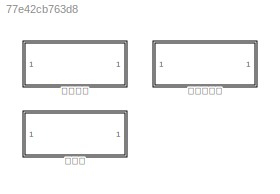
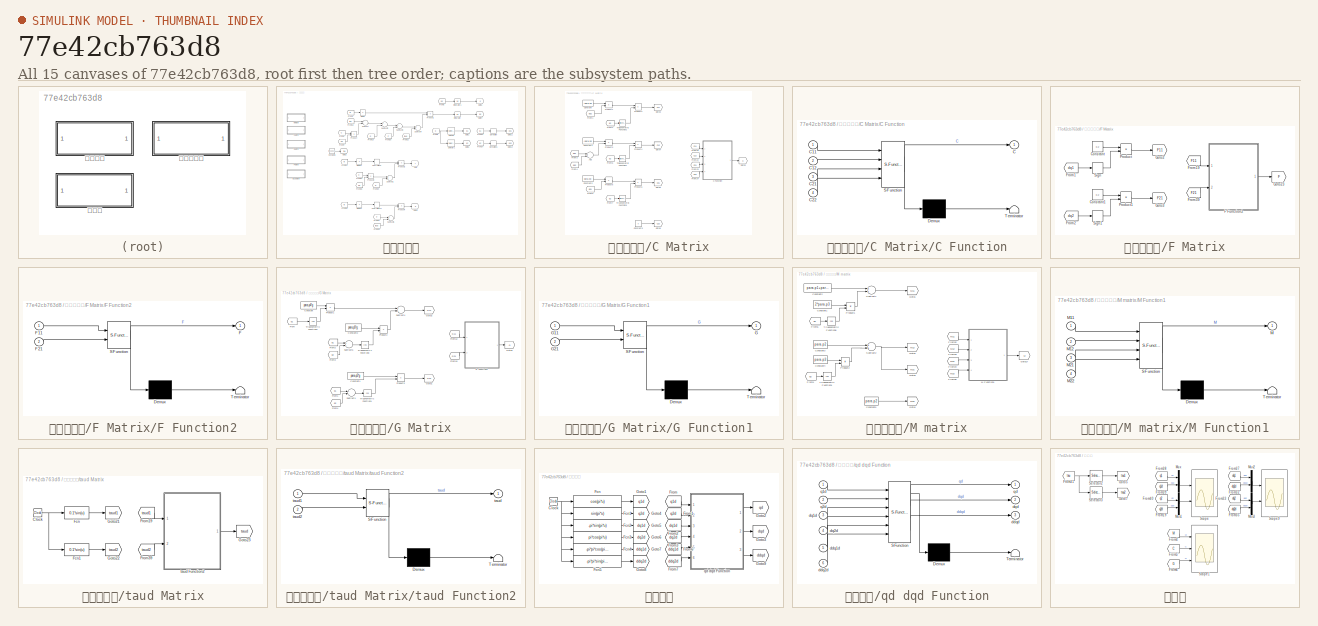
[diagram: thumbnail index - all 15 canvases of the model, root first then tree order]
MODEL slx_77e42cb763d8
KIND model
CONFIG AbsTol = auto
CONFIG EnableMultiTasking = on
CONFIG FixedStep = 0.005
CONFIG MaxStep = auto
CONFIG MinStep = auto
CONFIG RelTol = 1e-3
CONFIG SampleTimeConstraint = Unconstrained
CONFIG Solver = ode4
CONFIG SolverName = ode4
CONFIG StartTime = 0.0
CONFIG StopTime = tmax
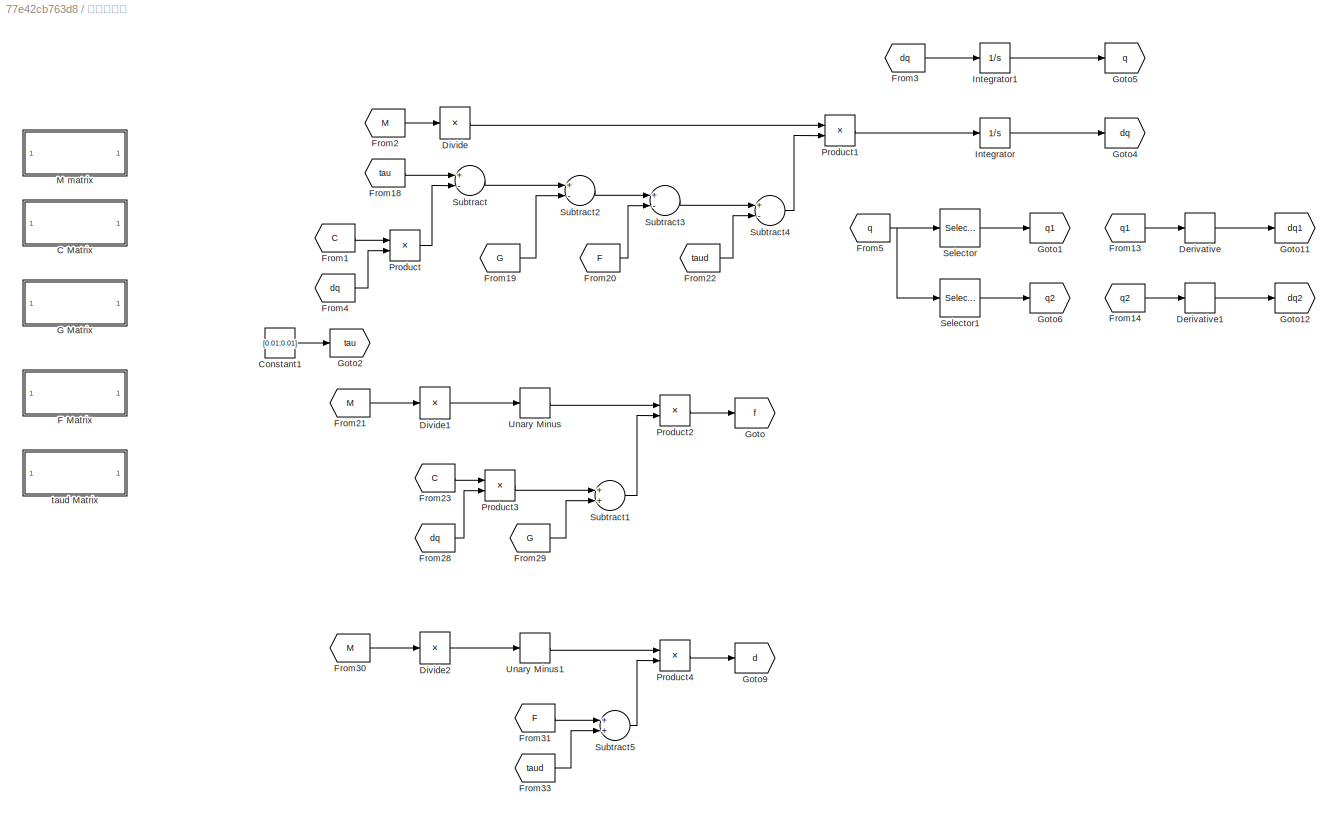
BLOCK [SubSystem] 动力学方程
  Ports = []
  RequestExecContextInheritance = off
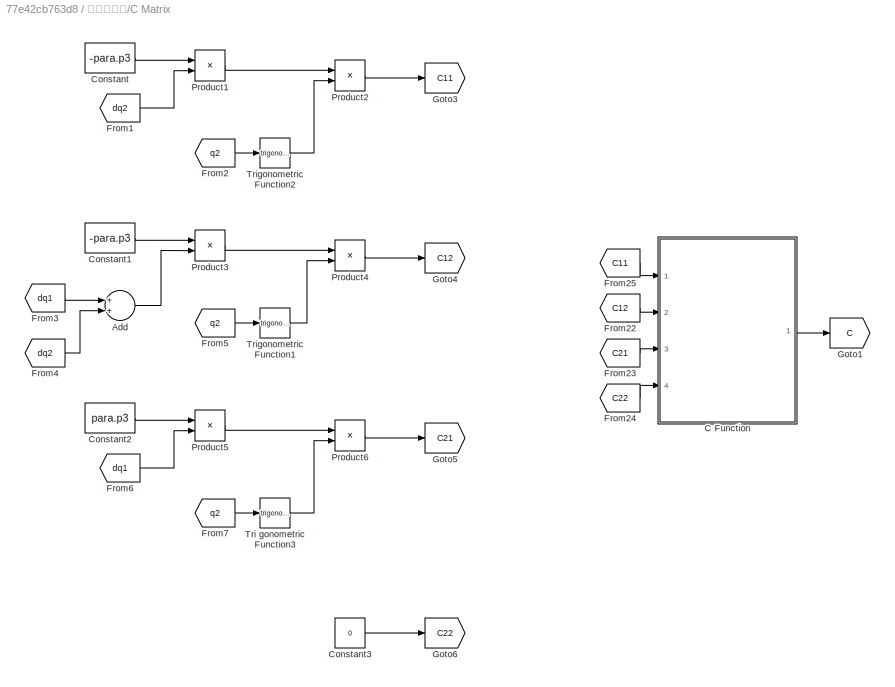
BLOCK [SubSystem] 动力学方程/C Matrix
  Ports = []
  RequestExecContextInheritance = off
BLOCK [Sum] 动力学方程/C Matrix/Add
  InputSameDT = off
  OutDataTypeStr = Inherit: Inherit via internal rule
  Ports = [2, 1]
  SaturateOnIntegerOverflow = off
BLOCK [SubSystem] 动力学方程/C Matrix/C Function
  ErrorFcn = Stateflow.Translate.translate
  PermitHierarchicalResolution = ExplicitOnly
  Ports = [4, 1]
  RequestExecContextInheritance = off
  SFBlockType = MATLAB Function
  TreatAsAtomicUnit = on
BLOCK [Demux] 动力学方程/C Matrix/C Function/ Demux 
  Outputs = 1
  Ports = [1, 1]
BLOCK [S-Function] 动力学方程/C Matrix/C Function/ SFunction 
  EnableBusSupport = on
  FunctionName = sf_sfun
  PortCounts = [4 2]
  Ports = [4, 2]
  SFcnIsStateOwnerBlock = off
  SFunctionDeploymentMode = off
  Tag = Stateflow S-Function common_2 3
BLOCK [Terminator] 动力学方程/C Matrix/C Function/ Terminator 
BLOCK [Outport] 动力学方程/C Matrix/C Function/C
  IconDisplay = Port number
BLOCK [Inport] 动力学方程/C Matrix/C Function/C11
  IconDisplay = Port number
BLOCK [Inport] 动力学方程/C Matrix/C Function/C12
  IconDisplay = Port number
  Port = 2
BLOCK [Inport] 动力学方程/C Matrix/C Function/C21
  IconDisplay = Port number
  Port = 3
BLOCK [Inport] 动力学方程/C Matrix/C Function/C22
  IconDisplay = Port number
  Port = 4
BLOCK [Constant] 动力学方程/C Matrix/Constant
  Value = -para.p3
BLOCK [Constant] 动力学方程/C Matrix/Constant1
  Value = -para.p3
BLOCK [Constant] 动力学方程/C Matrix/Constant2
  Value = para.p3
BLOCK [Constant] 动力学方程/C Matrix/Constant3
  Value = 0
BLOCK [From] 动力学方程/C Matrix/From1
  GotoTag = dq2
  TagVisibility = global
BLOCK [From] 动力学方程/C Matrix/From2
  GotoTag = q2
  TagVisibility = global
BLOCK [From] 动力学方程/C Matrix/From22
  GotoTag = C12
BLOCK [From] 动力学方程/C Matrix/From23
  GotoTag = C21
BLOCK [From] 动力学方程/C Matrix/From24
  GotoTag = C22
BLOCK [From] 动力学方程/C Matrix/From25
  GotoTag = C11
BLOCK [From] 动力学方程/C Matrix/From3
  GotoTag = dq1
  TagVisibility = global
BLOCK [From] 动力学方程/C Matrix/From4
  GotoTag = dq2
  TagVisibility = global
BLOCK [From] 动力学方程/C Matrix/From5
  GotoTag = q2
  TagVisibility = global
BLOCK [From] 动力学方程/C Matrix/From6
  GotoTag = dq1
  TagVisibility = global
BLOCK [From] 动力学方程/C Matrix/From7
  GotoTag = q2
  TagVisibility = global
BLOCK [Goto] 动力学方程/C Matrix/Goto1
  GotoTag = C
  TagVisibility = global
BLOCK [Goto] 动力学方程/C Matrix/Goto3
  GotoTag = C11
BLOCK [Goto] 动力学方程/C Matrix/Goto4
  GotoTag = C12
BLOCK [Goto] 动力学方程/C Matrix/Goto5
  GotoTag = C21
BLOCK [Goto] 动力学方程/C Matrix/Goto6
  GotoTag = C22
BLOCK [Product] 动力学方程/C Matrix/Product1
  InputSameDT = off
  OutDataTypeStr = Inherit: Inherit via internal rule
  Ports = [2, 1]
  RndMeth = Floor
  SaturateOnIntegerOverflow = off
BLOCK [Product] 动力学方程/C Matrix/Product2
  InputSameDT = off
  OutDataTypeStr = Inherit: Inherit via internal rule
  Ports = [2, 1]
  RndMeth = Floor
  SaturateOnIntegerOverflow = off
BLOCK [Product] 动力学方程/C Matrix/Product3
  InputSameDT = off
  OutDataTypeStr = Inherit: Inherit via internal rule
  Ports = [2, 1]
  RndMeth = Floor
  SaturateOnIntegerOverflow = off
BLOCK [Product] 动力学方程/C Matrix/Product4
  InputSameDT = off
  OutDataTypeStr = Inherit: Inherit via internal rule
  Ports = [2, 1]
  RndMeth = Floor
  SaturateOnIntegerOverflow = off
BLOCK [Product] 动力学方程/C Matrix/Product5
  InputSameDT = off
  OutDataTypeStr = Inherit: Inherit via internal rule
  Ports = [2, 1]
  RndMeth = Floor
  SaturateOnIntegerOverflow = off
BLOCK [Product] 动力学方程/C Matrix/Product6
  InputSameDT = off
  OutDataTypeStr = Inherit: Inherit via internal rule
  Ports = [2, 1]
  RndMeth = Floor
  SaturateOnIntegerOverflow = off
BLOCK [Trigonometry] 动力学方程/C Matrix/Tri gonometric Function3
  Ports = [1, 1]
BLOCK [Trigonometry] 动力学方程/C Matrix/Trigonometric Function1
  Ports = [1, 1]
BLOCK [Trigonometry] 动力学方程/C Matrix/Trigonometric Function2
  Ports = [1, 1]
BLOCK [Constant] 动力学方程/Constant1
  Value = [0.01;0.01]
BLOCK [Derivative] 动力学方程/Derivative
BLOCK [Derivative] 动力学方程/Derivative1
BLOCK [Product] 动力学方程/Divide
  InputSameDT = off
  Inputs = /
  Multiplication = Matrix(*)
  OutDataTypeStr = Inherit: Inherit via internal rule
  Ports = [1, 1]
  RndMeth = Floor
  SaturateOnIntegerOverflow = off
BLOCK [Product] 动力学方程/Divide1
  InputSameDT = off
  Inputs = /
  Multiplication = Matrix(*)
  OutDataTypeStr = Inherit: Inherit via internal rule
  Ports = [1, 1]
  RndMeth = Floor
  SaturateOnIntegerOverflow = off
BLOCK [Product] 动力学方程/Divide2
  InputSameDT = off
  Inputs = /
  Multiplication = Matrix(*)
  OutDataTypeStr = Inherit: Inherit via internal rule
  Ports = [1, 1]
  RndMeth = Floor
  SaturateOnIntegerOverflow = off
BLOCK [SubSystem] 动力学方程/F Matrix
  Ports = []
  RequestExecContextInheritance = off
BLOCK [Constant] 动力学方程/F Matrix/Constant
  Value = 0.2
BLOCK [Constant] 动力学方程/F Matrix/Constant1
  Value = 0.2
BLOCK [SubSystem] 动力学方程/F Matrix/F Function2
  ErrorFcn = Stateflow.Translate.translate
  PermitHierarchicalResolution = ExplicitOnly
  Ports = [2, 1]
  RequestExecContextInheritance = off
  SFBlockType = MATLAB Function
  TreatAsAtomicUnit = on
BLOCK [Demux] 动力学方程/F Matrix/F Function2/ Demux 
  Outputs = 1
  Ports = [1, 1]
BLOCK [S-Function] 动力学方程/F Matrix/F Function2/ SFunction 
  EnableBusSupport = on
  FunctionName = sf_sfun
  PortCounts = [2 2]
  Ports = [2, 2]
  SFcnIsStateOwnerBlock = off
  SFunctionDeploymentMode = off
  Tag = Stateflow S-Function common_2 5
BLOCK [Terminator] 动力学方程/F Matrix/F Function2/ Terminator 
BLOCK [Outport] 动力学方程/F Matrix/F Function2/F
  IconDisplay = Port number
BLOCK [Inport] 动力学方程/F Matrix/F Function2/F11
  IconDisplay = Port number
BLOCK [Inport] 动力学方程/F Matrix/F Function2/F21
  IconDisplay = Port number
  Port = 2
BLOCK [From] 动力学方程/F Matrix/From1
  GotoTag = dq1
  TagVisibility = global
BLOCK [From] 动力学方程/F Matrix/From19
  GotoTag = F11
BLOCK [From] 动力学方程/F Matrix/From2
  GotoTag = dq2
  TagVisibility = global
BLOCK [From] 动力学方程/F Matrix/From39
  GotoTag = F21
BLOCK [Goto] 动力学方程/F Matrix/Goto2
  GotoTag = F11
BLOCK [Goto] 动力学方程/F Matrix/Goto23
  GotoTag = F
  TagVisibility = global
BLOCK [Goto] 动力学方程/F Matrix/Goto3
  GotoTag = F21
BLOCK [Product] 动力学方程/F Matrix/Product
  InputSameDT = off
  OutDataTypeStr = Inherit: Inherit via internal rule
  Ports = [2, 1]
  RndMeth = Floor
  SaturateOnIntegerOverflow = off
BLOCK [Product] 动力学方程/F Matrix/Product1
  InputSameDT = off
  OutDataTypeStr = Inherit: Inherit via internal rule
  Ports = [2, 1]
  RndMeth = Floor
  SaturateOnIntegerOverflow = off
BLOCK [Signum] 动力学方程/F Matrix/Sign
BLOCK [Signum] 动力学方程/F Matrix/Sign1
BLOCK [From] 动力学方程/From1
  GotoTag = C
  TagVisibility = global
BLOCK [From] 动力学方程/From13
  GotoTag = q1
  TagVisibility = global
BLOCK [From] 动力学方程/From14
  GotoTag = q2
  TagVisibility = global
BLOCK [From] 动力学方程/From18
  GotoTag = tau
BLOCK [From] 动力学方程/From19
  GotoTag = G
  TagVisibility = global
BLOCK [From] 动力学方程/From2
  GotoTag = M
  TagVisibility = global
BLOCK [From] 动力学方程/From20
  GotoTag = F
  TagVisibility = global
BLOCK [From] 动力学方程/From21
  GotoTag = M
  TagVisibility = global
BLOCK [From] 动力学方程/From22
  GotoTag = taud
  TagVisibility = global
BLOCK [From] 动力学方程/From23
  GotoTag = C
  TagVisibility = global
BLOCK [From] 动力学方程/From28
  GotoTag = dq
  TagVisibility = global
BLOCK [From] 动力学方程/From29
  GotoTag = G
  TagVisibility = global
BLOCK [From] 动力学方程/From3
  GotoTag = dq
  TagVisibility = global
BLOCK [From] 动力学方程/From30
  GotoTag = M
  TagVisibility = global
BLOCK [From] 动力学方程/From31
  GotoTag = F
  TagVisibility = global
BLOCK [From] 动力学方程/From33
  GotoTag = taud
  TagVisibility = global
BLOCK [From] 动力学方程/From4
  GotoTag = dq
  TagVisibility = global
BLOCK [From] 动力学方程/From5 
  GotoTag = q
  TagVisibility = global
BLOCK [SubSystem] 动力学方程/G Matrix
  Ports = []
  RequestExecContextInheritance = off
BLOCK [Constant] 动力学方程/G Matrix/Constant
  Value = para.p4*g
BLOCK [Constant] 动力学方程/G Matrix/Constant1
  Value = para.p5*g
BLOCK [Constant] 动力学方程/G Matrix/Constant2
  Value = para.p5*g
BLOCK [From] 动力学方程/G Matrix/From
  GotoTag = q1
  TagVisibility = global
BLOCK [From] 动力学方程/G Matrix/From1
  GotoTag = q1
  TagVisibility = global
BLOCK [From] 动力学方程/G Matrix/From10
  GotoTag = G21
BLOCK [From] 动力学方程/G Matrix/From12
  GotoTag = G11
BLOCK [From] 动力学方程/G Matrix/From2
  GotoTag = q1
  TagVisibility = global
BLOCK [From] 动力学方程/G Matrix/From3
  GotoTag = q2
  TagVisibility = global
BLOCK [From] 动力学方程/G Matrix/From4
  GotoTag = q2
  TagVisibility = global
BLOCK [SubSystem] 动力学方程/G Matrix/G Function1
  ErrorFcn = Stateflow.Translate.translate
  PermitHierarchicalResolution = ExplicitOnly
  Ports = [2, 1]
  RequestExecContextInheritance = off
  SFBlockType = MATLAB Function
  TreatAsAtomicUnit = on
BLOCK [Demux] 动力学方程/G Matrix/G Function1/ Demux 
  Outputs = 1
  Ports = [1, 1]
BLOCK [S-Function] 动力学方程/G Matrix/G Function1/ SFunction 
  EnableBusSupport = on
  FunctionName = sf_sfun
  PortCounts = [2 2]
  Ports = [2, 2]
  SFcnIsStateOwnerBlock = off
  SFunctionDeploymentMode = off
  Tag = Stateflow S-Function common_2 2
BLOCK [Terminator] 动力学方程/G Matrix/G Function1/ Terminator 
BLOCK [Outport] 动力学方程/G Matrix/G Function1/G
  IconDisplay = Port number
BLOCK [Inport] 动力学方程/G Matrix/G Function1/G11
  IconDisplay = Port number
BLOCK [Inport] 动力学方程/G Matrix/G Function1/G21
  IconDisplay = Port number
  Port = 2
BLOCK [Goto] 动力学方程/G Matrix/Goto1
  GotoTag = G21
BLOCK [Goto] 动力学方程/G Matrix/Goto2
  GotoTag = G11
BLOCK [Goto] 动力学方程/G Matrix/Goto3
  GotoTag = G
  TagVisibility = global
BLOCK [Product] 动力学方程/G Matrix/Product1
  InputSameDT = off
  OutDataTypeStr = Inherit: Inherit via internal rule
  Ports = [2, 1]
  RndMeth = Floor
  SaturateOnIntegerOverflow = off
BLOCK [Product] 动力学方程/G Matrix/Product2
  InputSameDT = off
  OutDataTypeStr = Inherit: Inherit via internal rule
  Ports = [2, 1]
  RndMeth = Floor
  SaturateOnIntegerOverflow = off
BLOCK [Product] 动力学方程/G Matrix/Product3
  InputSameDT = off
  OutDataTypeStr = Inherit: Inherit via internal rule
  Ports = [2, 1]
  RndMeth = Floor
  SaturateOnIntegerOverflow = off
BLOCK [Sum] 动力学方程/G Matrix/Subtract1
  InputSameDT = off
  OutDataTypeStr = Inherit: Inherit via internal rule
  Ports = [2, 1]
  SaturateOnIntegerOverflow = off
BLOCK [Sum] 动力学方程/G Matrix/Subtract4
  InputSameDT = off
  OutDataTypeStr = Inherit: Inherit via internal rule
  Ports = [2, 1]
  SaturateOnIntegerOverflow = off
BLOCK [Sum] 动力学方程/G Matrix/Subtract5
  InputSameDT = off
  OutDataTypeStr = Inherit: Inherit via internal rule
  Ports = [2, 1]
  SaturateOnIntegerOverflow = off
BLOCK [Trigonometry] 动力学方程/G Matrix/Trigonometric Function1
  Operator = cos
  Ports = [1, 1]
BLOCK [Trigonometry] 动力学方程/G Matrix/Trigonometric Function2
  Operator = cos
  Ports = [1, 1]
BLOCK [Trigonometry] 动力学方程/G Matrix/Trigonometric Function3
  Operator = cos
  Ports = [1, 1]
BLOCK [Goto] 动力学方程/Goto
  GotoTag = f
BLOCK [Goto] 动力学方程/Goto1
  GotoTag = q1
  TagVisibility = global
BLOCK [Goto] 动力学方程/Goto11
  GotoTag = dq1
  TagVisibility = global
BLOCK [Goto] 动力学方程/Goto12
  GotoTag = dq2
  TagVisibility = global
BLOCK [Goto] 动力学方程/Goto2
  GotoTag = tau
BLOCK [Goto] 动力学方程/Goto4
  GotoTag = dq
  TagVisibility = global
BLOCK [Goto] 动力学方程/Goto5
  GotoTag = q
  TagVisibility = global
BLOCK [Goto] 动力学方程/Goto6
  GotoTag = q2
  TagVisibility = global
BLOCK [Goto] 动力学方程/Goto9
  GotoTag = d
BLOCK [Integrator] 动力学方程/Integrator
  InitialCondition = dq_init
  Ports = [1, 1]
BLOCK [Integrator] 动力学方程/Integrator1
  InitialCondition = q_init
  Ports = [1, 1]
BLOCK [SubSystem] 动力学方程/M matrix
  Ports = []
  RequestExecContextInheritance = off
BLOCK [Constant] 动力学方程/M matrix/Constant1
  Value = 2*para.p3
BLOCK [Constant] 动力学方程/M matrix/Constant2
  Value = para.p1+para.p2
BLOCK [Constant] 动力学方程/M matrix/Constant3
  Value = para.p2
BLOCK [Constant] 动力学方程/M matrix/Constant4
  Value = para.p3
BLOCK [Constant] 动力学方程/M matrix/Constant5
  Value = para.p2
BLOCK [From] 动力学方程/M matrix/From1
  GotoTag = q2
  TagVisibility = global
BLOCK [From] 动力学方程/M matrix/From32
  GotoTag = M11
BLOCK [From] 动力学方程/M matrix/From33
  GotoTag = M12
BLOCK [From] 动力学方程/M matrix/From34
  GotoTag = M21
BLOCK [From] 动力学方程/M matrix/From35
  GotoTag = M22
BLOCK [From] 动力学方程/M matrix/From5
  GotoTag = q2
  TagVisibility = global
BLOCK [Goto] 动力学方程/M matrix/Goto1
  GotoTag = M11
BLOCK [Goto] 动力学方程/M matrix/Goto17
  GotoTag = M
  TagVisibility = global
BLOCK [Goto] 动力学方程/M matrix/Goto2
  GotoTag = M12
BLOCK [Goto] 动力学方程/M matrix/Goto3
  GotoTag = M21
BLOCK [Goto] 动力学方程/M matrix/Goto4
  GotoTag = M22
BLOCK [SubSystem] 动力学方程/M matrix/M Function1
  ErrorFcn = Stateflow.Translate.translate
  PermitHierarchicalResolution = ExplicitOnly
  Ports = [4, 1]
  RequestExecContextInheritance = off
  SFBlockType = MATLAB Function
  TreatAsAtomicUnit = on
BLOCK [Demux] 动力学方程/M matrix/M Function1/ Demux 
  Outputs = 1
  Ports = [1, 1]
BLOCK [S-Function] 动力学方程/M matrix/M Function1/ SFunction 
  EnableBusSupport = on
  FunctionName = sf_sfun
  PortCounts = [4 2]
  Ports = [4, 2]
  SFcnIsStateOwnerBlock = off
  SFunctionDeploymentMode = off
  Tag = Stateflow S-Function common_2 4
BLOCK [Terminator] 动力学方程/M matrix/M Function1/ Terminator 
BLOCK [Outport] 动力学方程/M matrix/M Function1/M
  IconDisplay = Port number
BLOCK [Inport] 动力学方程/M matrix/M Function1/M11
  IconDisplay = Port number
BLOCK [Inport] 动力学方程/M matrix/M Function1/M12
  IconDisplay = Port number
  Port = 2
BLOCK [Inport] 动力学方程/M matrix/M Function1/M21
  IconDisplay = Port number
  Port = 3
BLOCK [Inport] 动力学方程/M matrix/M Function1/M22
  IconDisplay = Port number
  Port = 4
BLOCK [Product] 动力学方程/M matrix/Product1
  InputSameDT = off
  OutDataTypeStr = Inherit: Inherit via internal rule
  Ports = [2, 1]
  RndMeth = Floor
  SaturateOnIntegerOverflow = off
BLOCK [Product] 动力学方程/M matrix/Product2
  InputSameDT = off
  OutDataTypeStr = Inherit: Inherit via internal rule
  Ports = [2, 1]
  RndMeth = Floor
  SaturateOnIntegerOverflow = off
BLOCK [Sum] 动力学方程/M matrix/Subtract1
  InputSameDT = off
  OutDataTypeStr = Inherit: Inherit via internal rule
  Ports = [2, 1]
  SaturateOnIntegerOverflow = off
BLOCK [Sum] 动力学方程/M matrix/Subtract2
  InputSameDT = off
  OutDataTypeStr = Inherit: Inherit via internal rule
  Ports = [2, 1]
  SaturateOnIntegerOverflow = off
BLOCK [Trigonometry] 动力学方程/M matrix/Trigonometric Function1
  Operator = cos
  Ports = [1, 1]
BLOCK [Trigonometry] 动力学方程/M matrix/Trigonometric Function8
  Operator = cos
  Ports = [1, 1]
BLOCK [Product] 动力学方程/Product
  InputSameDT = off
  Multiplication = Matrix(*)
  OutDataTypeStr = Inherit: Inherit via internal rule
  Ports = [2, 1]
  RndMeth = Floor
  SaturateOnIntegerOverflow = off
BLOCK [Product] 动力学方程/Product1
  InputSameDT = off
  Multiplication = Matrix(*)
  OutDataTypeStr = Inherit: Inherit via internal rule
  Ports = [2, 1]
  RndMeth = Floor
  SaturateOnIntegerOverflow = off
BLOCK [Product] 动力学方程/Product2
  InputSameDT = off
  Multiplication = Matrix(*)
  OutDataTypeStr = Inherit: Inherit via internal rule
  Ports = [2, 1]
  RndMeth = Floor
  SaturateOnIntegerOverflow = off
BLOCK [Product] 动力学方程/Product3
  InputSameDT = off
  Multiplication = Matrix(*)
  OutDataTypeStr = Inherit: Inherit via internal rule
  Ports = [2, 1]
  RndMeth = Floor
  SaturateOnIntegerOverflow = off
BLOCK [Product] 动力学方程/Product4
  InputSameDT = off
  Multiplication = Matrix(*)
  OutDataTypeStr = Inherit: Inherit via internal rule
  Ports = [2, 1]
  RndMeth = Floor
  SaturateOnIntegerOverflow = off
BLOCK [Selector] 动力学方程/Selector
  IndexOptions = Index vector (dialog)
  Indices = [1]
  InputPortWidth = 2
  OutputSizes = 1
  Ports = [1, 1]
BLOCK [Selector] 动力学方程/Selector1
  IndexOptions = Index vector (dialog)
  Indices = [2]
  InputPortWidth = 2
  OutputSizes = 1
  Ports = [1, 1]
BLOCK [Sum] 动力学方程/Subtract
  InputSameDT = off
  Inputs = +-
  OutDataTypeStr = Inherit: Inherit via internal rule
  Ports = [2, 1]
  SaturateOnIntegerOverflow = off
BLOCK [Sum] 动力学方程/Subtract1
  InputSameDT = off
  OutDataTypeStr = Inherit: Inherit via internal rule
  Ports = [2, 1]
  SaturateOnIntegerOverflow = off
BLOCK [Sum] 动力学方程/Subtract2
  InputSameDT = off
  Inputs = +-
  OutDataTypeStr = Inherit: Inherit via internal rule
  Ports = [2, 1]
  SaturateOnIntegerOverflow = off
BLOCK [Sum] 动力学方程/Subtract3
  InputSameDT = off
  Inputs = +-
  OutDataTypeStr = Inherit: Inherit via internal rule
  Ports = [2, 1]
  SaturateOnIntegerOverflow = off
BLOCK [Sum] 动力学方程/Subtract4
  InputSameDT = off
  Inputs = +-
  OutDataTypeStr = Inherit: Inherit via internal rule
  Ports = [2, 1]
  SaturateOnIntegerOverflow = off
BLOCK [Sum] 动力学方程/Subtract5
  InputSameDT = off
  OutDataTypeStr = Inherit: Inherit via internal rule
  Ports = [2, 1]
  SaturateOnIntegerOverflow = off
BLOCK [UnaryMinus] 动力学方程/Unary Minus
BLOCK [UnaryMinus] 动力学方程/Unary Minus1
BLOCK [SubSystem] 动力学方程/taud Matrix
  Ports = []
  RequestExecContextInheritance = off
BLOCK [Clock] 动力学方程/taud Matrix/Clock
BLOCK [Fcn] 动力学方程/taud Matrix/Fcn
  Expr = 0.1*sin(u)
BLOCK [Fcn] 动力学方程/taud Matrix/Fcn1
  Expr = 0.1*sin(u)
BLOCK [From] 动力学方程/taud Matrix/From19
  GotoTag = taud1
BLOCK [From] 动力学方程/taud Matrix/From39
  GotoTag = taud2
BLOCK [Goto] 动力学方程/taud Matrix/Goto21
  GotoTag = taud1
BLOCK [Goto] 动力学方程/taud Matrix/Goto22
  GotoTag = taud2
BLOCK [Goto] 动力学方程/taud Matrix/Goto23
  GotoTag = taud
  TagVisibility = global
BLOCK [SubSystem] 动力学方程/taud Matrix/taud Function2
  ErrorFcn = Stateflow.Translate.translate
  PermitHierarchicalResolution = ExplicitOnly
  Ports = [2, 1]
  RequestExecContextInheritance = off
  SFBlockType = MATLAB Function
  TreatAsAtomicUnit = on
BLOCK [Demux] 动力学方程/taud Matrix/taud Function2/ Demux 
  Outputs = 1
  Ports = [1, 1]
BLOCK [S-Function] 动力学方程/taud Matrix/taud Function2/ SFunction 
  EnableBusSupport = on
  FunctionName = sf_sfun
  PortCounts = [2 2]
  Ports = [2, 2]
  SFcnIsStateOwnerBlock = off
  SFunctionDeploymentMode = off
  Tag = Stateflow S-Function common_2 6
BLOCK [Terminator] 动力学方程/taud Matrix/taud Function2/ Terminator 
BLOCK [Outport] 动力学方程/taud Matrix/taud Function2/taud
  IconDisplay = Port number
BLOCK [Inport] 动力学方程/taud Matrix/taud Function2/taud1
  IconDisplay = Port number
BLOCK [Inport] 动力学方程/taud Matrix/taud Function2/taud2
  IconDisplay = Port number
  Port = 2
BLOCK [SubSystem] 期望轨迹
  Ports = []
  RequestExecContextInheritance = off
BLOCK [Clock] 期望轨迹/Clock
BLOCK [Fcn] 期望轨迹/Fcn
  Expr = cos(pi*u)
BLOCK [Fcn] 期望轨迹/Fcn1
  Expr = sin(pi*u)
BLOCK [Fcn] 期望轨迹/Fcn2
  Expr = -pi*sin(pi*u)
BLOCK [Fcn] 期望轨迹/Fcn3
  Expr = pi*cos(pi*u)
BLOCK [Fcn] 期望轨迹/Fcn4
  Expr = -pi*pi*cos(pi*u)
BLOCK [Fcn] 期望轨迹/Fcn5
  Expr = -pi*pi*sin(pi*u)
BLOCK [From] 期望轨迹/From
  GotoTag = q1d
  TagVisibility = global
BLOCK [From] 期望轨迹/From1
  GotoTag = q2d
  TagVisibility = global
BLOCK [From] 期望轨迹/From2
  GotoTag = dq1d
  TagVisibility = global
BLOCK [From] 期望轨迹/From3
  GotoTag = dq2d
  TagVisibility = global
BLOCK [From] 期望轨迹/From6
  GotoTag = ddq1d
  TagVisibility = global
BLOCK [From] 期望轨迹/From7
  GotoTag = ddq2d
  TagVisibility = global
BLOCK [Goto] 期望轨迹/Goto1
  GotoTag = q1d
  TagVisibility = global
BLOCK [Goto] 期望轨迹/Goto2
  GotoTag = qd
  TagVisibility = global
BLOCK [Goto] 期望轨迹/Goto3
  GotoTag = dqd
  TagVisibility = global
BLOCK [Goto] 期望轨迹/Goto4
  GotoTag = q2d
  TagVisibility = global
BLOCK [Goto] 期望轨迹/Goto5
  GotoTag = dq1d
  TagVisibility = global
BLOCK [Goto] 期望轨迹/Goto6
  GotoTag = dq2d
  TagVisibility = global
BLOCK [Goto] 期望轨迹/Goto7
  GotoTag = ddq1d
  TagVisibility = global
BLOCK [Goto] 期望轨迹/Goto8
  GotoTag = ddq2d
  TagVisibility = global
BLOCK [Goto] 期望轨迹/Goto9
  GotoTag = ddqd
  TagVisibility = global
BLOCK [SubSystem] 期望轨迹/qd dqd Function
  ErrorFcn = Stateflow.Translate.translate
  PermitHierarchicalResolution = ExplicitOnly
  Ports = [6, 3]
  RequestExecContextInheritance = off
  SFBlockType = MATLAB Function
  TreatAsAtomicUnit = on
BLOCK [Demux] 期望轨迹/qd dqd Function/ Demux 
  Outputs = 1
  Ports = [1, 1]
BLOCK [S-Function] 期望轨迹/qd dqd Function/ SFunction 
  EnableBusSupport = on
  FunctionName = sf_sfun
  PortCounts = [6 4]
  Ports = [6, 4]
  SFcnIsStateOwnerBlock = off
  SFunctionDeploymentMode = off
  Tag = Stateflow S-Function common_2 1
BLOCK [Terminator] 期望轨迹/qd dqd Function/ Terminator 
BLOCK [Inport] 期望轨迹/qd dqd Function/ddq1d
  IconDisplay = Port number
  Port = 5
BLOCK [Inport] 期望轨迹/qd dqd Function/ddq2d
  IconDisplay = Port number
  Port = 6
BLOCK [Outport] 期望轨迹/qd dqd Function/ddqd
  IconDisplay = Port number
  Port = 3
BLOCK [Inport] 期望轨迹/qd dqd Function/dq1d
  IconDisplay = Port number
  Port = 3
BLOCK [Inport] 期望轨迹/qd dqd Function/dq2d
  IconDisplay = Port number
  Port = 4
BLOCK [Outport] 期望轨迹/qd dqd Function/dqd
  IconDisplay = Port number
  Port = 2
BLOCK [Inport] 期望轨迹/qd dqd Function/q1d
  IconDisplay = Port number
BLOCK [Inport] 期望轨迹/qd dqd Function/q2d
  IconDisplay = Port number
  Port = 2
BLOCK [Outport] 期望轨迹/qd dqd Function/qd
  IconDisplay = Port number
BLOCK [SubSystem] 观察箱
  Ports = []
  RequestExecContextInheritance = off
BLOCK [From] 观察箱/From19
  GotoTag = q2d
  TagVisibility = global
BLOCK [From] 观察箱/From31
  GotoTag = tau
BLOCK [From] 观察箱/From32
  GotoTag = dq1d
  TagVisibility = global
BLOCK [From] 观察箱/From33
  GotoTag = dq2
  TagVisibility = global
BLOCK [From] 观察箱/From35
  GotoTag = dq2d
  TagVisibility = global
BLOCK [From] 观察箱/From37
  GotoTag = dq1
  TagVisibility = global
BLOCK [From] 观察箱/From38
  GotoTag = q1
  TagVisibility = global
BLOCK [From] 观察箱/From39
  GotoTag = q1d
  TagVisibility = global
BLOCK [From] 观察箱/From4
  GotoTag = M
  TagVisibility = global
BLOCK [From] 观察箱/From40
  GotoTag = q2
  TagVisibility = global
BLOCK [From] 观察箱/From5
  GotoTag = C
  TagVisibility = global
BLOCK [From] 观察箱/From6
  GotoTag = G
  TagVisibility = global
BLOCK [Goto] 观察箱/Goto5
  GotoTag = tau1
  TagVisibility = global
BLOCK [Goto] 观察箱/Goto7
  GotoTag = tau2
  TagVisibility = global
BLOCK [Mux] 观察箱/Mux
  DisplayOption = bar
  Inputs = 2
  Ports = [2, 1]
BLOCK [Mux] 观察箱/Mux1
  DisplayOption = bar
  Inputs = 2
  Ports = [2, 1]
BLOCK [Mux] 观察箱/Mux2
  DisplayOption = bar
  Inputs = 2
  Ports = [2, 1]
BLOCK [Mux] 观察箱/Mux3
  DisplayOption = bar
  Inputs = 2
  Ports = [2, 1]
BLOCK [Scope] 观察箱/Scope
  Floating = off
  NumInputPorts = 2
  Ports = [2]
  ScopeSpecificationString = Simulink.scopes.TimeScopeBlockCfg('CurrentConfiguration', extmgr.ConfigurationSet(extmgr.Configuration('Core','General UI',true),extmgr.Configuration('Core','Source UI',true),extmgr.Configuration('Sources','WiredSimulink',true,'DataLoggingVariableName','ScopeData1'),extmgr.Configuration('Visuals','Time Domain',true,'SerializedDisplays',{struct('MinYLimReal','-3.51997','MaxYLimReal','1.50222','YLab...<+1999ch>
BLOCK [Scope] 观察箱/Scope1
  Floating = off
  NumInputPorts = 3
  Ports = [3]
  ScopeSpecificationString = Simulink.scopes.TimeScopeBlockCfg('CurrentConfiguration', extmgr.ConfigurationSet(extmgr.Configuration('Core','General UI',true),extmgr.Configuration('Core','Source UI',true),extmgr.Configuration('Sources','WiredSimulink',true,'DataLoggingVariableName','ScopeData1'),extmgr.Configuration('Visuals','Time Domain',true,'SerializedDisplays',{struct('MinYLimReal','0.18','MaxYLimReal','5.98','YLabelReal'...<+2746ch>
BLOCK [Scope] 观察箱/Scope9
  Floating = off
  NumInputPorts = 2
  Ports = [2]
  ScopeSpecificationString = Simulink.scopes.TimeScopeBlockCfg('CurrentConfiguration', extmgr.ConfigurationSet(extmgr.Configuration('Core','General UI',true),extmgr.Configuration('Core','Source UI',true),extmgr.Configuration('Sources','WiredSimulink',true,'DataLoggingVariableName','ScopeData5'),extmgr.Configuration('Visuals','Time Domain',true,'SerializedDisplays',{struct('MinYLimReal','-4.22898','MaxYLimReal','3.96055','YLab...<+2021ch>
BLOCK [Selector] 观察箱/Selector2
  IndexOptions = Index vector (dialog)
  Indices = [1]
  InputPortWidth = 2
  OutputSizes = 1
  Ports = [1, 1]
BLOCK [Selector] 观察箱/Selector3
  IndexOptions = Index vector (dialog)
  Indices = [2]
  InputPortWidth = 2
  OutputSizes = 1
  Ports = [1, 1]
LINE 动力学方程/C Matrix/Add:1 -> 动力学方程/C Matrix/Product3:2
LINE 动力学方程/C Matrix/C Function:1 -> 动力学方程/C Matrix/Goto1:1
LINE 动力学方程/C Matrix/Constant1:1 -> 动力学方程/C Matrix/Product3:1
LINE 动力学方程/C Matrix/Constant2:1 -> 动力学方程/C Matrix/Product5:1
LINE 动力学方程/C Matrix/Constant3:1 -> 动力学方程/C Matrix/Goto6:1
LINE 动力学方程/C Matrix/Constant:1 -> 动力学方程/C Matrix/Product1:1
LINE 动力学方程/C Matrix/From1:1 -> 动力学方程/C Matrix/Product1:2
LINE 动力学方程/C Matrix/From22:1 -> 动力学方程/C Matrix/C Function:2
LINE 动力学方程/C Matrix/From23:1 -> 动力学方程/C Matrix/C Function:3
LINE 动力学方程/C Matrix/From24:1 -> 动力学方程/C Matrix/C Function:4
LINE 动力学方程/C Matrix/From25:1 -> 动力学方程/C Matrix/C Function:1
LINE 动力学方程/C Matrix/From2:1 -> 动力学方程/C Matrix/Trigonometric Function2:1
LINE 动力学方程/C Matrix/From3:1 -> 动力学方程/C Matrix/Add:1
LINE 动力学方程/C Matrix/From4:1 -> 动力学方程/C Matrix/Add:2
LINE 动力学方程/C Matrix/From5:1 -> 动力学方程/C Matrix/Trigonometric Function1:1
LINE 动力学方程/C Matrix/From6:1 -> 动力学方程/C Matrix/Product5:2
LINE 动力学方程/C Matrix/From7:1 -> 动力学方程/C Matrix/Tri gonometric Function3:1
LINE 动力学方程/C Matrix/Product1:1 -> 动力学方程/C Matrix/Product2:1
LINE 动力学方程/C Matrix/Product2:1 -> 动力学方程/C Matrix/Goto3:1
LINE 动力学方程/C Matrix/Product3:1 -> 动力学方程/C Matrix/Product4:1
LINE 动力学方程/C Matrix/Product4:1 -> 动力学方程/C Matrix/Goto4:1
LINE 动力学方程/C Matrix/Product5:1 -> 动力学方程/C Matrix/Product6:1
LINE 动力学方程/C Matrix/Product6:1 -> 动力学方程/C Matrix/Goto5:1
LINE 动力学方程/C Matrix/Tri gonometric Function3:1 -> 动力学方程/C Matrix/Product6:2
LINE 动力学方程/C Matrix/Trigonometric Function1:1 -> 动力学方程/C Matrix/Product4:2
LINE 动力学方程/C Matrix/Trigonometric Function2:1 -> 动力学方程/C Matrix/Product2:2
LINE 动力学方程/Constant1:1 -> 动力学方程/Goto2:1
LINE 动力学方程/Derivative1:1 -> 动力学方程/Goto12:1
LINE 动力学方程/Derivative:1 -> 动力学方程/Goto11:1
LINE 动力学方程/Divide1:1 -> 动力学方程/Unary Minus:1
LINE 动力学方程/Divide2:1 -> 动力学方程/Unary Minus1:1
LINE 动力学方程/Divide:1 -> 动力学方程/Product1:1
LINE 动力学方程/F Matrix/Constant1:1 -> 动力学方程/F Matrix/Product1:1
LINE 动力学方程/F Matrix/Constant:1 -> 动力学方程/F Matrix/Product:1
LINE 动力学方程/F Matrix/F Function2:1 -> 动力学方程/F Matrix/Goto23:1
LINE 动力学方程/F Matrix/From19:1 -> 动力学方程/F Matrix/F Function2:1
LINE 动力学方程/F Matrix/From1:1 -> 动力学方程/F Matrix/Sign:1
LINE 动力学方程/F Matrix/From2:1 -> 动力学方程/F Matrix/Sign1:1
LINE 动力学方程/F Matrix/From39:1 -> 动力学方程/F Matrix/F Function2:2
LINE 动力学方程/F Matrix/Product1:1 -> 动力学方程/F Matrix/Goto3:1
LINE 动力学方程/F Matrix/Product:1 -> 动力学方程/F Matrix/Goto2:1
LINE 动力学方程/F Matrix/Sign1:1 -> 动力学方程/F Matrix/Product1:2
LINE 动力学方程/F Matrix/Sign:1 -> 动力学方程/F Matrix/Product:2
LINE 动力学方程/From13:1 -> 动力学方程/Derivative:1
LINE 动力学方程/From14:1 -> 动力学方程/Derivative1:1
LINE 动力学方程/From18:1 -> 动力学方程/Subtract:1
LINE 动力学方程/From19:1 -> 动力学方程/Subtract2:2
LINE 动力学方程/From1:1 -> 动力学方程/Product:1
LINE 动力学方程/From20:1 -> 动力学方程/Subtract3:2
LINE 动力学方程/From21:1 -> 动力学方程/Divide1:1
LINE 动力学方程/From22:1 -> 动力学方程/Subtract4:2
LINE 动力学方程/From23:1 -> 动力学方程/Product3:1
LINE 动力学方程/From28:1 -> 动力学方程/Product3:2
LINE 动力学方程/From29:1 -> 动力学方程/Subtract1:2
LINE 动力学方程/From2:1 -> 动力学方程/Divide:1
LINE 动力学方程/From30:1 -> 动力学方程/Divide2:1
LINE 动力学方程/From31:1 -> 动力学方程/Subtract5:1
LINE 动力学方程/From33:1 -> 动力学方程/Subtract5:2
LINE 动力学方程/From3:1 -> 动力学方程/Integrator1:1
LINE 动力学方程/From4:1 -> 动力学方程/Product:2
NET 动力学方程/From5 :1 -> 动力学方程/Selector1:1, 动力学方程/Selector:1
LINE 动力学方程/G Matrix/Constant1:1 -> 动力学方程/G Matrix/Product3:1
LINE 动力学方程/G Matrix/Constant2:1 -> 动力学方程/G Matrix/Product2:1
LINE 动力学方程/G Matrix/Constant:1 -> 动力学方程/G Matrix/Product1:1
LINE 动力学方程/G Matrix/From10:1 -> 动力学方程/G Matrix/G Function1:2
LINE 动力学方程/G Matrix/From12:1 -> 动力学方程/G Matrix/G Function1:1
LINE 动力学方程/G Matrix/From1:1 -> 动力学方程/G Matrix/Subtract1:1
LINE 动力学方程/G Matrix/From2:1 -> 动力学方程/G Matrix/Subtract5:1
LINE 动力学方程/G Matrix/From3:1 -> 动力学方程/G Matrix/Subtract5:2
LINE 动力学方程/G Matrix/From4:1 -> 动力学方程/G Matrix/Subtract1:2
LINE 动力学方程/G Matrix/From:1 -> 动力学方程/G Matrix/Trigonometric Function2:1
LINE 动力学方程/G Matrix/G Function1:1 -> 动力学方程/G Matrix/Goto3:1
LINE 动力学方程/G Matrix/Product1:1 -> 动力学方程/G Matrix/Subtract4:1
LINE 动力学方程/G Matrix/Product2:1 -> 动力学方程/G Matrix/Subtract4:2
LINE 动力学方程/G Matrix/Product3:1 -> 动力学方程/G Matrix/Goto1:1
LINE 动力学方程/G Matrix/Subtract1:1 -> 动力学方程/G Matrix/Trigonometric Function1:1
LINE 动力学方程/G Matrix/Subtract4:1 -> 动力学方程/G Matrix/Goto2:1
LINE 动力学方程/G Matrix/Subtract5:1 -> 动力学方程/G Matrix/Trigonometric Function3:1
LINE 动力学方程/G Matrix/Trigonometric Function1:1 -> 动力学方程/G Matrix/Product3:2
LINE 动力学方程/G Matrix/Trigonometric Function2:1 -> 动力学方程/G Matrix/Product1:2
LINE 动力学方程/G Matrix/Trigonometric Function3:1 -> 动力学方程/G Matrix/Product2:2
LINE 动力学方程/Integrator1:1 -> 动力学方程/Goto5:1
LINE 动力学方程/Integrator:1 -> 动力学方程/Goto4:1
LINE 动力学方程/M matrix/Constant1:1 -> 动力学方程/M matrix/Product1:1
LINE 动力学方程/M matrix/Constant2:1 -> 动力学方程/M matrix/Subtract1:1
LINE 动力学方程/M matrix/Constant3:1 -> 动力学方程/M matrix/Subtract2:1
LINE 动力学方程/M matrix/Constant4:1 -> 动力学方程/M matrix/Product2:1
LINE 动力学方程/M matrix/Constant5:1 -> 动力学方程/M matrix/Goto4:1
LINE 动力学方程/M matrix/From1:1 -> 动力学方程/M matrix/Trigonometric Function1:1
LINE 动力学方程/M matrix/From32:1 -> 动力学方程/M matrix/M Function1:1
LINE 动力学方程/M matrix/From33:1 -> 动力学方程/M matrix/M Function1:2
LINE 动力学方程/M matrix/From34:1 -> 动力学方程/M matrix/M Function1:3
LINE 动力学方程/M matrix/From35:1 -> 动力学方程/M matrix/M Function1:4
LINE 动力学方程/M matrix/From5:1 -> 动力学方程/M matrix/Trigonometric Function8:1
LINE 动力学方程/M matrix/M Function1:1 -> 动力学方程/M matrix/Goto17:1
LINE 动力学方程/M matrix/Product1:1 -> 动力学方程/M matrix/Subtract1:2
LINE 动力学方程/M matrix/Product2:1 -> 动力学方程/M matrix/Subtract2:2
LINE 动力学方程/M matrix/Subtract1:1 -> 动力学方程/M matrix/Goto1:1
NET 动力学方程/M matrix/Subtract2:1 -> 动力学方程/M matrix/Goto2:1, 动力学方程/M matrix/Goto3:1
LINE 动力学方程/M matrix/Trigonometric Function1:1 -> 动力学方程/M matrix/Product2:2
LINE 动力学方程/M matrix/Trigonometric Function8:1 -> 动力学方程/M matrix/Product1:2
LINE 动力学方程/Product1:1 -> 动力学方程/Integrator:1
LINE 动力学方程/Product2:1 -> 动力学方程/Goto:1
LINE 动力学方程/Product3:1 -> 动力学方程/Subtract1:1
LINE 动力学方程/Product4:1 -> 动力学方程/Goto9:1
LINE 动力学方程/Product:1 -> 动力学方程/Subtract:2
LINE 动力学方程/Selector1:1 -> 动力学方程/Goto6:1
LINE 动力学方程/Selector:1 -> 动力学方程/Goto1:1
LINE 动力学方程/Subtract1:1 -> 动力学方程/Product2:2
LINE 动力学方程/Subtract2:1 -> 动力学方程/Subtract3:1
LINE 动力学方程/Subtract3:1 -> 动力学方程/Subtract4:1
LINE 动力学方程/Subtract4:1 -> 动力学方程/Product1:2
LINE 动力学方程/Subtract5:1 -> 动力学方程/Product4:2
LINE 动力学方程/Subtract:1 -> 动力学方程/Subtract2:1
LINE 动力学方程/Unary Minus1:1 -> 动力学方程/Product4:1
LINE 动力学方程/Unary Minus:1 -> 动力学方程/Product2:1
NET 动力学方程/taud Matrix/Clock:1 -> 动力学方程/taud Matrix/Fcn1:1, 动力学方程/taud Matrix/Fcn:1
LINE 动力学方程/taud Matrix/Fcn1:1 -> 动力学方程/taud Matrix/Goto22:1
LINE 动力学方程/taud Matrix/Fcn:1 -> 动力学方程/taud Matrix/Goto21:1
LINE 动力学方程/taud Matrix/From19:1 -> 动力学方程/taud Matrix/taud Function2:1
LINE 动力学方程/taud Matrix/From39:1 -> 动力学方程/taud Matrix/taud Function2:2
LINE 动力学方程/taud Matrix/taud Function2:1 -> 动力学方程/taud Matrix/Goto23:1
NET 期望轨迹/Clock:1 -> 期望轨迹/Fcn1:1, 期望轨迹/Fcn2:1, 期望轨迹/Fcn3:1, 期望轨迹/Fcn4:1, 期望轨迹/Fcn5:1, 期望轨迹/Fcn:1
LINE 期望轨迹/Fcn1:1 -> 期望轨迹/Goto4:1
LINE 期望轨迹/Fcn2:1 -> 期望轨迹/Goto5:1
LINE 期望轨迹/Fcn3:1 -> 期望轨迹/Goto6:1
LINE 期望轨迹/Fcn4:1 -> 期望轨迹/Goto7:1
LINE 期望轨迹/Fcn5:1 -> 期望轨迹/Goto8:1
LINE 期望轨迹/Fcn:1 -> 期望轨迹/Goto1:1
LINE 期望轨迹/From1:1 -> 期望轨迹/qd dqd Function:2
LINE 期望轨迹/From2:1 -> 期望轨迹/qd dqd Function:3
LINE 期望轨迹/From3:1 -> 期望轨迹/qd dqd Function:4
LINE 期望轨迹/From6:1 -> 期望轨迹/qd dqd Function:5
LINE 期望轨迹/From7:1 -> 期望轨迹/qd dqd Function:6
LINE 期望轨迹/From:1 -> 期望轨迹/qd dqd Function:1
LINE 期望轨迹/qd dqd Function:1 -> 期望轨迹/Goto2:1
LINE 期望轨迹/qd dqd Function:2 -> 期望轨迹/Goto3:1
LINE 期望轨迹/qd dqd Function:3 -> 期望轨迹/Goto9:1
LINE 观察箱/From19:1 -> 观察箱/Mux1:2
NET 观察箱/From31:1 -> 观察箱/Selector2:1, 观察箱/Selector3:1
LINE 观察箱/From32:1 -> 观察箱/Mux2:2
LINE 观察箱/From33:1 -> 观察箱/Mux3:1
LINE 观察箱/From35:1 -> 观察箱/Mux3:2
LINE 观察箱/From37:1 -> 观察箱/Mux2:1
LINE 观察箱/From38:1 -> 观察箱/Mux:1
LINE 观察箱/From39:1 -> 观察箱/Mux:2
LINE 观察箱/From40:1 -> 观察箱/Mux1:1
LINE 观察箱/From4:1 -> 观察箱/Scope1:1
LINE 观察箱/From5:1 -> 观察箱/Scope1:2
LINE 观察箱/From6:1 -> 观察箱/Scope1:3
LINE 观察箱/Mux1:1 -> 观察箱/Scope:2
LINE 观察箱/Mux2:1 -> 观察箱/Scope9:1
LINE 观察箱/Mux3:1 -> 观察箱/Scope9:2
LINE 观察箱/Mux:1 -> 观察箱/Scope:1
LINE 观察箱/Selector2:1 -> 观察箱/Goto5:1
LINE 观察箱/Selector3:1 -> 观察箱/Goto7:1
note: NET lines group one-source signal fan-out (src -> all destinations, sorted); 1:1 wires keep LINE
CHART 期望轨迹/qd dqd Function states=1 transitions=1
  STATE_LABEL 'eML_blk_kernel()'
  STATE_LABEL 'SCRIPT:\nfunction [qd,dqd,ddqd]= fcn(q1d,q2d,dq1d,dq2d,ddq1d,ddq2d)\n%#codegen\n\nqd   = [q1d;q2d];\ndqd  = [dq1d;dq2d];\nddqd = [ddq1d;ddq2d];'
CHART 动力学方程/G Matrix/G Function1 states=1 transitions=1
  STATE_LABEL 'eML_blk_kernel()'
  STATE_LABEL 'SCRIPT:\nfunction G = fcn(G11,G21)\n%#codegen\n\nG = [G11;G21];'
CHART 动力学方程/C Matrix/C Function states=1 transitions=1
  STATE_LABEL 'eML_blk_kernel()'
  STATE_LABEL 'SCRIPT:\nfunction C = fcn(C11,C12,C21,C22)\n%#codegen\n\nC = [C11 C12;C21 C22];'
CHART 动力学方程/M matrix/M Function1 states=1 transitions=1
  STATE_LABEL 'eML_blk_kernel()'
  STATE_LABEL 'SCRIPT:\nfunction M = fcn(M11,M12,M21,M22)\n%#codegen\n\nM = [M11 M12;M21 M22];'
CHART 动力学方程/F Matrix/F Function2 states=1 transitions=1
  STATE_LABEL 'eML_blk_kernel()'
  STATE_LABEL 'SCRIPT:\nfunction F = fcn(F11,F21)\n%#codegen\n\nF = [F11;F21];'
CHART 动力学方程/taud Matrix/taud Function2 states=1 transitions=1
  STATE_LABEL 'eML_blk_kernel()'
  STATE_LABEL 'SCRIPT:\nfunction taud = fcn(taud1,taud2)\n%#codegen\n\ntaud = [taud1;taud2];'
